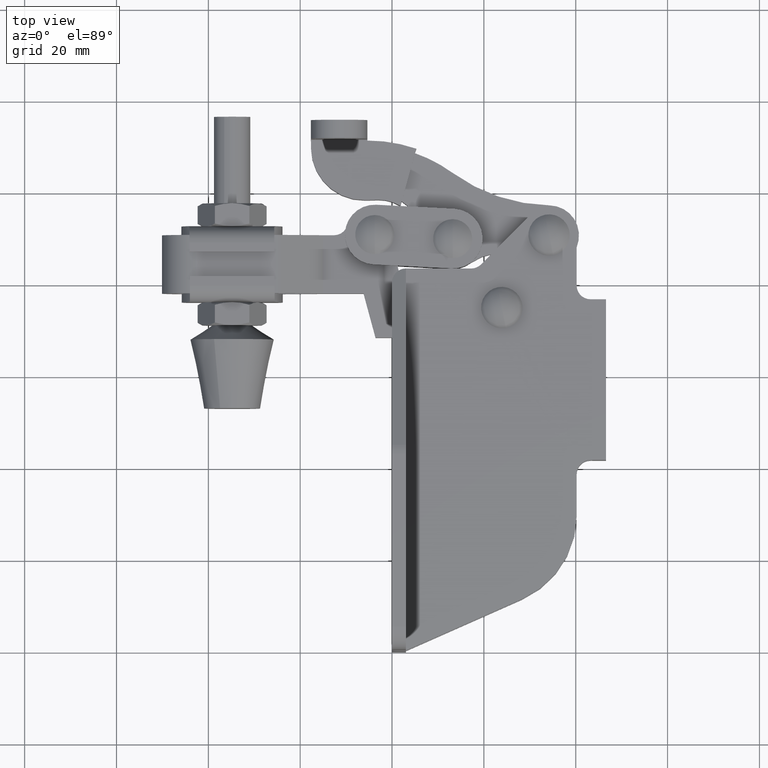
[diagram: clean part render]
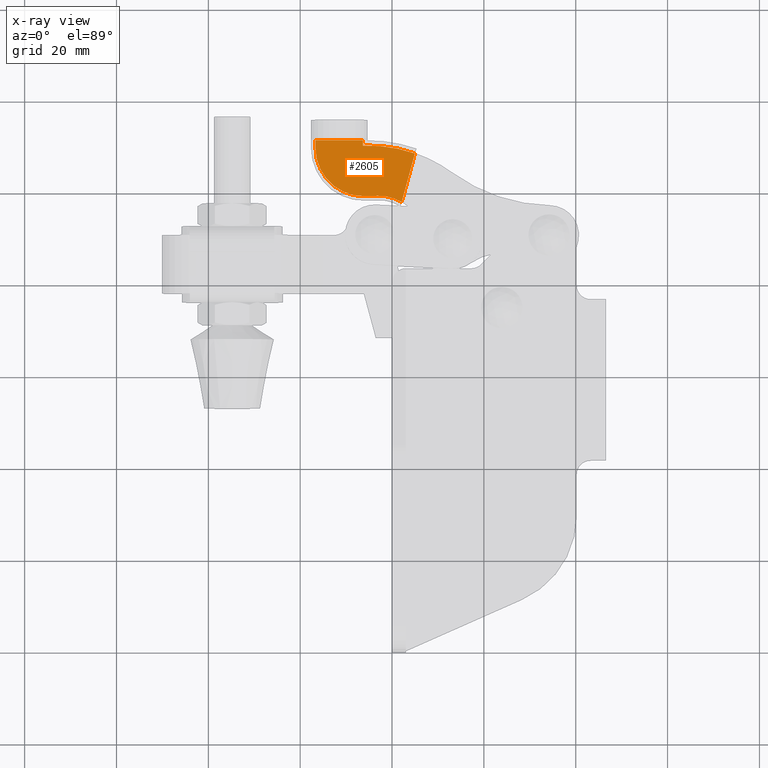
[diagram: x-ray — body ghosted, one internal face saturated and labeled with its STEP entity id]
A machine part, top view, then the same camera in x-ray: the body is ghosted and one INTERNAL B-rep face — a face not visible from any outside direction — is saturated and labeled: STEP entity #2605.
In plain terms, the highlighted planar face has unit normal (0, 0, 1).
Its self-contained STEP definition (entity closure, byte-faithful):
#224 = EDGE_CURVE ( 'NONE', #9498, #5421, #13205, .T. ) ;
#394 = CIRCLE ( 'NONE', #10250, 31.31999999999999000 ) ;
#550 = CARTESIAN_POINT ( 'NONE',  ( -6.360381389219786500, 112.2806786295499300, -6.019999999999993400 ) ) ;
#594 = CARTESIAN_POINT ( 'NONE',  ( -16.67910847883408100, 109.6064056483124500, -6.019999999999993400 ) ) ;
#606 = ORIENTED_EDGE ( 'NONE', *, *, #4473, .T. ) ;
#683 = CARTESIAN_POINT ( 'NONE',  ( -3.034555354090154200, 99.16866103049011400, -6.019999999999993400 ) ) ;
#811 = EDGE_CURVE ( 'NONE', #6916, #6985, #1336, .T. ) ;
#890 = VERTEX_POINT ( 'NONE', #11665 ) ;
#899 = EDGE_CURVE ( 'NONE', #13735, #6916, #3045, .T. ) ;
#1021 = DIRECTION ( 'NONE',  ( -0.0004764216129664911300, 0.9999998865112169600, 0.0000000000000000000 ) ) ;
#1297 = VERTEX_POINT ( 'NONE', #5239 ) ;
#1318 = CARTESIAN_POINT ( 'NONE',  ( -16.67910847883408100, 109.6064056483124500, -6.019999999999993400 ) ) ;
#1336 = LINE ( 'NONE', #683, #4527 ) ;
#1564 = ORIENTED_EDGE ( 'NONE', *, *, #12863, .T. ) ;
#1613 = CARTESIAN_POINT ( 'NONE',  ( -16.66038022028707000, 112.2757714869363600, -6.019999999999993400 ) ) ;
#1818 = CARTESIAN_POINT ( 'NONE',  ( -3.034555354090140400, 99.16866103049001400, -6.019999999999993400 ) ) ;
#2269 = LINE ( 'NONE', #5594, #6168 ) ;
#2295 = ORIENTED_EDGE ( 'NONE', *, *, #4576, .F. ) ;
#2605 = ADVANCED_FACE ( 'NONE', ( #5747 ), #8345, .T. ) ;
#2758 = CARTESIAN_POINT ( 'NONE',  ( -6.340381391489555300, 112.2806881579821700, -6.019999999999993400 ) ) ;
#2781 = VERTEX_POINT ( 'NONE', #1613 ) ;
#2817 = CIRCLE ( 'NONE', #11786, 9.480000000000034200 ) ;
#2937 = CARTESIAN_POINT ( 'NONE',  ( -6.159109672736126300, 109.6114176036808500, -6.019999999999993400 ) ) ;
#3045 = CIRCLE ( 'NONE', #5794, 10.51999999999996400 ) ;
#3231 = VERTEX_POINT ( 'NONE', #14386 ) ;
#3288 = ORIENTED_EDGE ( 'NONE', *, *, #14742, .T. ) ;
#3417 = ORIENTED_EDGE ( 'NONE', *, *, #899, .T. ) ;
#3597 = CARTESIAN_POINT ( 'NONE',  ( -2.789619156769923300, 89.69182578557608600, -6.019999999999993400 ) ) ;
#3805 = DIRECTION ( 'NONE',  ( 0.0004764216129668242000, -0.9999998865112169600, 0.0000000000000000000 ) ) ;
#3943 = ORIENTED_EDGE ( 'NONE', *, *, #13357, .T. ) ;
#3959 = VECTOR ( 'NONE', #13006, 1000.000000000000000 ) ;
#3994 = CARTESIAN_POINT ( 'NONE',  ( -5.887302837735308700, 99.09492954708865400, -6.019999999999993400 ) ) ;
#4473 = EDGE_CURVE ( 'NONE', #7683, #5362, #12487, .T. ) ;
#4527 = VECTOR ( 'NONE', #8242, 1000.000000000000100 ) ;
#4576 = EDGE_CURVE ( 'NONE', #7683, #5659, #14499, .T. ) ;
#4586 = ORIENTED_EDGE ( 'NONE', *, *, #14125, .F. ) ;
#4685 = CARTESIAN_POINT ( 'NONE',  ( -16.67990379640432900, 111.2757620719982200, -6.019999999999993400 ) ) ;
#4701 = VECTOR ( 'NONE', #7493, 1000.000000000000000 ) ;
#5239 = CARTESIAN_POINT ( 'NONE',  ( -16.65990379867566400, 111.2757716004251200, -6.019999999999993400 ) ) ;
#5262 = VECTOR ( 'NONE', #7307, 1000.000000000000000 ) ;
#5362 = VERTEX_POINT ( 'NONE', #7959 ) ;
#5421 = VERTEX_POINT ( 'NONE', #4685 ) ;
#5449 = ORIENTED_EDGE ( 'NONE', *, *, #13270, .T. ) ;
#5496 = LINE ( 'NONE', #8236, #11071 ) ;
#5542 = DIRECTION ( 'NONE',  ( 0.0000000000000000000, 0.0000000000000000000, 1.000000000000000000 ) ) ;
#5594 = CARTESIAN_POINT ( 'NONE',  ( -0.3046717251128511200, 89.01461382040027100, -6.019999999999993400 ) ) ;
#5659 = VERTEX_POINT ( 'NONE', #2758 ) ;
#5747 = FACE_OUTER_BOUND ( 'NONE', #12454, .T. ) ;
#5794 = AXIS2_PLACEMENT_3D ( 'NONE', #2937, #7803, #14829 ) ;
#5996 = DIRECTION ( 'NONE',  ( -0.0000000000000000000, -0.0000000000000000000, -1.000000000000000000 ) ) ;
#6002 = DIRECTION ( 'NONE',  ( 0.9999998865112169600, 0.0004764216129664910800, 0.0000000000000000000 ) ) ;
#6168 = VECTOR ( 'NONE', #9122, 999.9999999999998900 ) ;
#6356 = CARTESIAN_POINT ( 'NONE',  ( -2.800381783738439700, 112.2823746904966100, -6.019999999999993400 ) ) ;
#6916 = VERTEX_POINT ( 'NONE', #3994 ) ;
#6923 = CARTESIAN_POINT ( 'NONE',  ( -6.339333263941024500, 110.0806884076575000, -6.019999999999993400 ) ) ;
#6985 = VERTEX_POINT ( 'NONE', #1818 ) ;
#7128 = LINE ( 'NONE', #11842, #3959 ) ;
#7237 = ORIENTED_EDGE ( 'NONE', *, *, #811, .T. ) ;
#7307 = DIRECTION ( 'NONE',  ( 0.9999998865112169600, 0.0004764216129668242000, -0.0000000000000000000 ) ) ;
#7493 = DIRECTION ( 'NONE',  ( 0.9999998865112169600, 0.0004764216129664911300, 0.0000000000000000000 ) ) ;
#7683 = VERTEX_POINT ( 'NONE', #550 ) ;
#7786 = CARTESIAN_POINT ( 'NONE',  ( -6.339904969876582400, 111.2806882714709400, -6.019999999999993400 ) ) ;
#7803 = DIRECTION ( 'NONE',  ( 0.0000000000000000000, 0.0000000000000000000, 1.000000000000000000 ) ) ;
#7959 = CARTESIAN_POINT ( 'NONE',  ( -6.359904967606813600, 111.2806787430386800, -6.019999999999993400 ) ) ;
#8056 = CARTESIAN_POINT ( 'NONE',  ( 2.089378065301780800, 97.81991203678045100, -6.019999999999993400 ) ) ;
#8199 = VECTOR ( 'NONE', #13476, 1000.000000000000000 ) ;
#8204 = ORIENTED_EDGE ( 'NONE', *, *, #14336, .T. ) ;
#8236 = CARTESIAN_POINT ( 'NONE',  ( 2.089378065301780800, 97.81991203678045100, -6.019999999999993400 ) ) ;
#8242 = DIRECTION ( 'NONE',  ( 0.9996661650753061500, 0.02583715161605027600, 0.0000000000000000000 ) ) ;
#8345 = PLANE ( 'NONE',  #15045 ) ;
#8765 = CARTESIAN_POINT ( 'NONE',  ( -2.800381783738439700, 112.2823746904966100, -6.019999999999993400 ) ) ;
#8969 = VECTOR ( 'NONE', #3805, 1000.000000000000000 ) ;
#9122 = DIRECTION ( 'NONE',  ( 0.2629363587201076200, 0.9648131794617085300, 0.0000000000000000000 ) ) ;
#9424 = ORIENTED_EDGE ( 'NONE', *, *, #14522, .T. ) ;
#9465 = DIRECTION ( 'NONE',  ( 0.4027148361205604700, -0.9153254944381207200, 0.0000000000000000000 ) ) ;
#9498 = VERTEX_POINT ( 'NONE', #11536 ) ;
#9625 = CARTESIAN_POINT ( 'NONE',  ( 2.092848449810460900, 97.81202424340563100, -6.019999999999992500 ) ) ;
#9733 = CARTESIAN_POINT ( 'NONE',  ( -6.349618762251263400, 89.69012972462938600, -6.019999999999993400 ) ) ;
#9836 = ORIENTED_EDGE ( 'NONE', *, *, #12681, .T. ) ;
#9922 = CARTESIAN_POINT ( 'NONE',  ( -16.67910847883408100, 109.6064056483124500, -6.019999999999993400 ) ) ;
#10075 = VECTOR ( 'NONE', #14385, 1000.000000000000000 ) ;
#10250 = AXIS2_PLACEMENT_3D ( 'NONE', #12631, #5542, #13795 ) ;
#10850 = VECTOR ( 'NONE', #12715, 1000.000000000000000 ) ;
#11071 = VECTOR ( 'NONE', #9465, 1000.000000000000100 ) ;
#11189 = VECTOR ( 'NONE', #14637, 1000.000000000000000 ) ;
#11231 = LINE ( 'NONE', #13881, #10850 ) ;
#11536 = CARTESIAN_POINT ( 'NONE',  ( -16.68038021801729400, 112.2757619585041100, -6.019999999999993400 ) ) ;
#11565 = LINE ( 'NONE', #8765, #11189 ) ;
#11592 = LINE ( 'NONE', #13150, #5262 ) ;
#11665 = CARTESIAN_POINT ( 'NONE',  ( -6.339343121455772900, 110.1013791432699800, -6.019999999999993400 ) ) ;
#11781 = VECTOR ( 'NONE', #1021, 1000.000000000000000 ) ;
#11786 = AXIS2_PLACEMENT_3D ( 'NONE', #13077, #5996, #14257 ) ;
#11842 = CARTESIAN_POINT ( 'NONE',  ( -16.64961759331854600, 89.68522258201584000, -6.019999999999993400 ) ) ;
#12327 = ORIENTED_EDGE ( 'NONE', *, *, #13419, .T. ) ;
#12454 = EDGE_LOOP ( 'NONE', ( #2295, #606, #12997, #12327, #4586, #14350, #3288, #3417, #7237, #9424, #1564, #8204, #9836, #3943, #5449 ) ) ;
#12487 = LINE ( 'NONE', #9733, #8969 ) ;
#12631 = CARTESIAN_POINT ( 'NONE',  ( -5.271744061820099200, 78.79957995779400900, -6.019999999999993400 ) ) ;
#12681 = EDGE_CURVE ( 'NONE', #3231, #890, #394, .T. ) ;
#12715 = DIRECTION ( 'NONE',  ( -0.0004764216129664911300, 0.9999998865112169600, 0.0000000000000000000 ) ) ;
#12863 = EDGE_CURVE ( 'NONE', #15011, #14588, #5496, .T. ) ;
#12997 = ORIENTED_EDGE ( 'NONE', *, *, #13507, .F. ) ;
#13006 = DIRECTION ( 'NONE',  ( -0.0004764216129668242000, 0.9999998865112169600, 0.0000000000000000000 ) ) ;
#13077 = CARTESIAN_POINT ( 'NONE',  ( -2.789619156769923300, 89.69182578557608600, -6.019999999999993400 ) ) ;
#13082 = DIRECTION ( 'NONE',  ( 0.0000000000000000000, -0.0000000000000000000, 1.000000000000000000 ) ) ;
#13150 = CARTESIAN_POINT ( 'NONE',  ( -2.799905362125480600, 111.2823748039853600, -6.019999999999993400 ) ) ;
#13205 = LINE ( 'NONE', #1318, #10075 ) ;
#13270 = EDGE_CURVE ( 'NONE', #14888, #5659, #11231, .T. ) ;
#13357 = EDGE_CURVE ( 'NONE', #890, #14888, #14909, .T. ) ;
#13419 = EDGE_CURVE ( 'NONE', #1297, #2781, #7128, .T. ) ;
#13476 = DIRECTION ( 'NONE',  ( 0.0004764216129664911300, -0.9999998865112169600, 0.0000000000000000000 ) ) ;
#13507 = EDGE_CURVE ( 'NONE', #1297, #5362, #11592, .T. ) ;
#13735 = VERTEX_POINT ( 'NONE', #594 ) ;
#13795 = DIRECTION ( 'NONE',  ( 0.9999998865112168500, 0.0004764216129664769300, 0.0000000000000000000 ) ) ;
#13881 = CARTESIAN_POINT ( 'NONE',  ( -6.339333263941024500, 110.0806884076575000, -6.019999999999993400 ) ) ;
#14125 = EDGE_CURVE ( 'NONE', #9498, #2781, #11565, .T. ) ;
#14257 = DIRECTION ( 'NONE',  ( 0.9999998865112168500, 0.0004764216129624422900, 0.0000000000000000000 ) ) ;
#14336 = EDGE_CURVE ( 'NONE', #14588, #3231, #2269, .T. ) ;
#14350 = ORIENTED_EDGE ( 'NONE', *, *, #224, .T. ) ;
#14385 = DIRECTION ( 'NONE',  ( 0.0004764216129664911300, -0.9999998865112169600, 0.0000000000000000000 ) ) ;
#14386 = CARTESIAN_POINT ( 'NONE',  ( 4.977053153472903400, 108.3952647047263300, -6.019999999999989800 ) ) ;
#14464 = LINE ( 'NONE', #9922, #8199 ) ;
#14499 = LINE ( 'NONE', #6356, #4701 ) ;
#14522 = EDGE_CURVE ( 'NONE', #6985, #15011, #2817, .T. ) ;
#14588 = VERTEX_POINT ( 'NONE', #9625 ) ;
#14637 = DIRECTION ( 'NONE',  ( 0.9999998865112169600, 0.0004764216129664911300, 0.0000000000000000000 ) ) ;
#14742 = EDGE_CURVE ( 'NONE', #5421, #13735, #14464, .T. ) ;
#14829 = DIRECTION ( 'NONE',  ( 0.9999998865112169600, 0.0004764216129665979800, 0.0000000000000000000 ) ) ;
#14888 = VERTEX_POINT ( 'NONE', #7786 ) ;
#14909 = LINE ( 'NONE', #6923, #11781 ) ;
#15011 = VERTEX_POINT ( 'NONE', #8056 ) ;
#15045 = AXIS2_PLACEMENT_3D ( 'NONE', #3597, #13082, #6002 ) ;